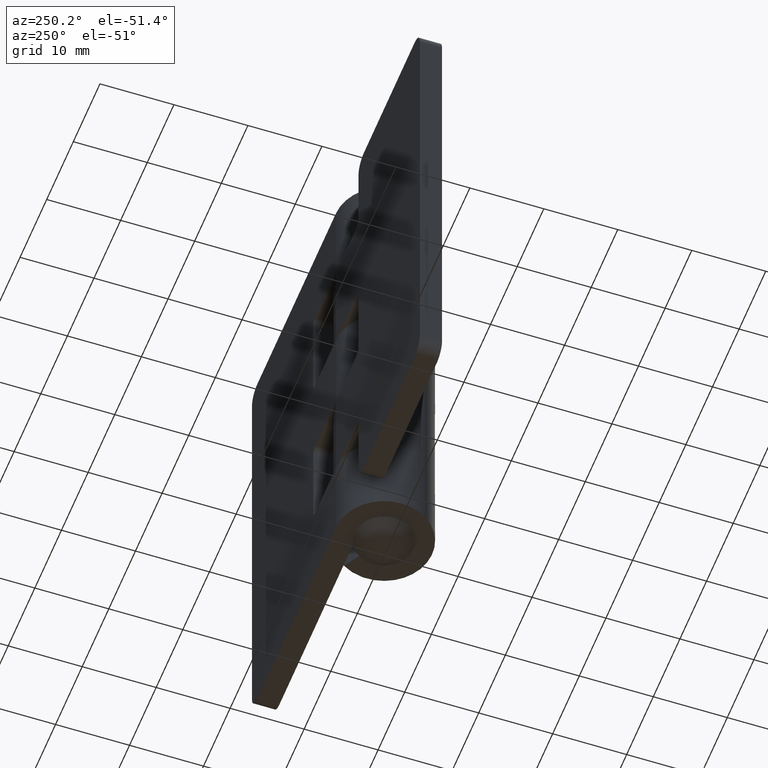
[diagram: clean part render]
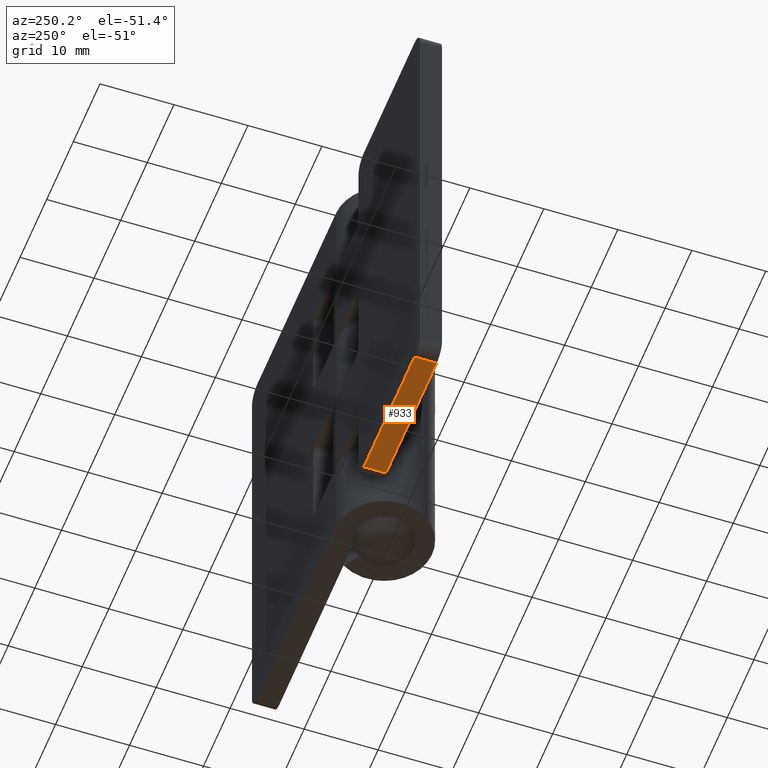
[diagram: same view with one face highlighted and labeled with its STEP entity id]
A machine part, auxiliary view. The second image highlights one B-rep face of the part: STEP entity #933.
In plain terms, the highlighted face is a freeform B-spline surface patch.
Its self-contained STEP definition (entity closure, byte-faithful):
#365=CARTESIAN_POINT('',(-10.500008000000101,3.499999000000000,0.0));
#366=VERTEX_POINT('',#365);
#382=CARTESIAN_POINT('',(-10.500008000000101,6.499999000000000,0.0));
#383=VERTEX_POINT('',#382);
#384=CARTESIAN_POINT('',(-10.500008000000101,6.499999000000000,0.0));
#385=CARTESIAN_POINT('',(-10.500008000000101,3.499999000000000,0.0));
#386=QUASI_UNIFORM_CURVE('',1,(#384,#385),.UNSPECIFIED.,.F.,.U.);
#387=EDGE_CURVE('',#383,#366,#386,.T.);
#489=CARTESIAN_POINT('',(-29.500008000000001,3.499999000000000,0.0));
#490=VERTEX_POINT('',#489);
#511=CARTESIAN_POINT('',(-29.500008000000001,6.499999000000000,0.0));
#512=VERTEX_POINT('',#511);
#526=CARTESIAN_POINT('',(-29.500008000000001,3.499999000000000,0.0));
#527=CARTESIAN_POINT('',(-29.500008000000001,6.499999000000000,0.0));
#528=QUASI_UNIFORM_CURVE('',1,(#526,#527),.UNSPECIFIED.,.F.,.U.);
#529=EDGE_CURVE('',#490,#512,#528,.T.);
#914=CARTESIAN_POINT('',(-30.449057606457512,3.350149033976436,0.0));
#915=CARTESIAN_POINT('',(-9.550957544176416,3.350149033976436,0.0));
#916=CARTESIAN_POINT('',(-30.449057606457501,6.649849073311926,0.0));
#917=CARTESIAN_POINT('',(-9.550957544176416,6.649849073311926,0.0));
#918=B_SPLINE_SURFACE_WITH_KNOTS('',1,1,((#914,#916),(#915,#917)),.UNSPECIFIED.,.F.,.F.,.U.,(2,2),(2,2),(0.0,20.898100062281092),(0.0,3.299700039335491),.UNSPECIFIED.);
#919=CARTESIAN_POINT('',(-29.500008000000001,6.499999000000000,0.0));
#920=CARTESIAN_POINT('',(-10.500008000000101,6.499999000000000,0.0));
#921=QUASI_UNIFORM_CURVE('',1,(#919,#920),.UNSPECIFIED.,.F.,.U.);
#922=EDGE_CURVE('',#512,#383,#921,.T.);
#923=ORIENTED_EDGE('',*,*,#922,.T.);
#924=ORIENTED_EDGE('',*,*,#387,.T.);
#925=CARTESIAN_POINT('',(-10.500008000000101,3.499999000000000,0.0));
#926=CARTESIAN_POINT('',(-29.500008000000001,3.499999000000000,0.0));
#927=QUASI_UNIFORM_CURVE('',1,(#925,#926),.UNSPECIFIED.,.F.,.U.);
#928=EDGE_CURVE('',#366,#490,#927,.T.);
#929=ORIENTED_EDGE('',*,*,#928,.T.);
#930=ORIENTED_EDGE('',*,*,#529,.T.);
#931=EDGE_LOOP('',(#923,#924,#929,#930));
#932=FACE_OUTER_BOUND('',#931,.T.);
#933=ADVANCED_FACE('',(#932),#918,.F.);